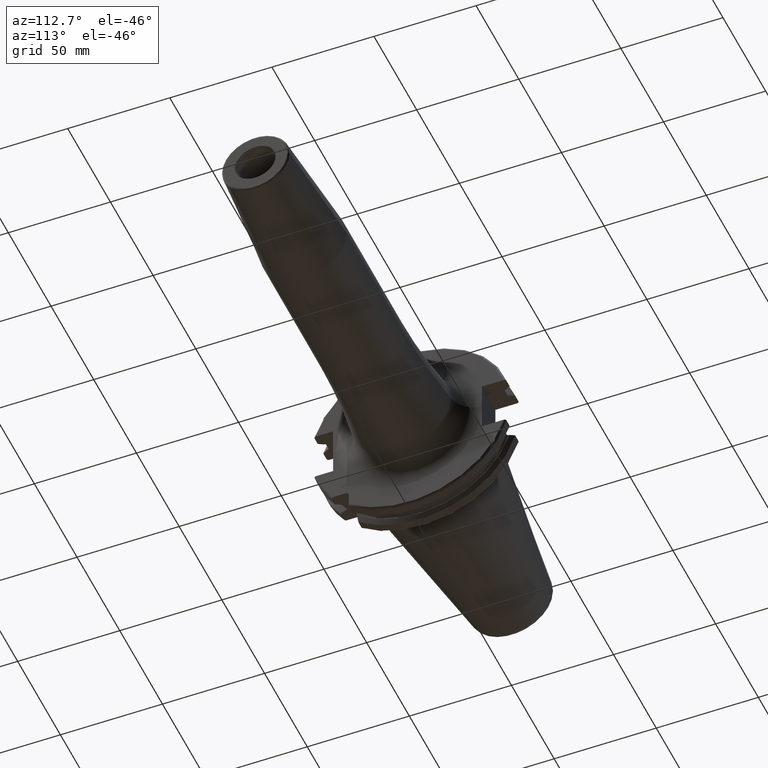
[diagram: clean part render]
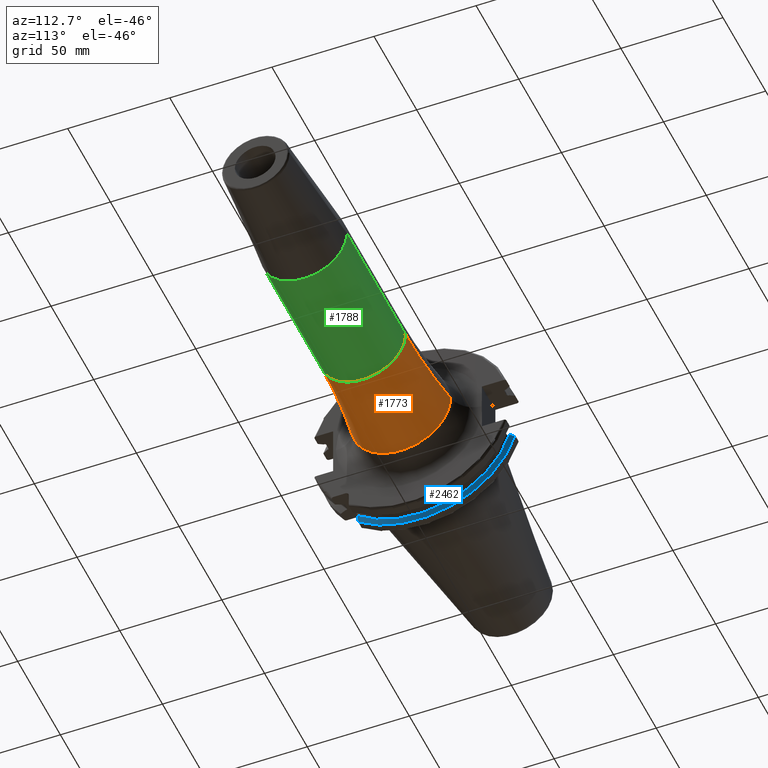
[diagram: same view with three faces highlighted in distinct colors, each labeled with its STEP entity id]
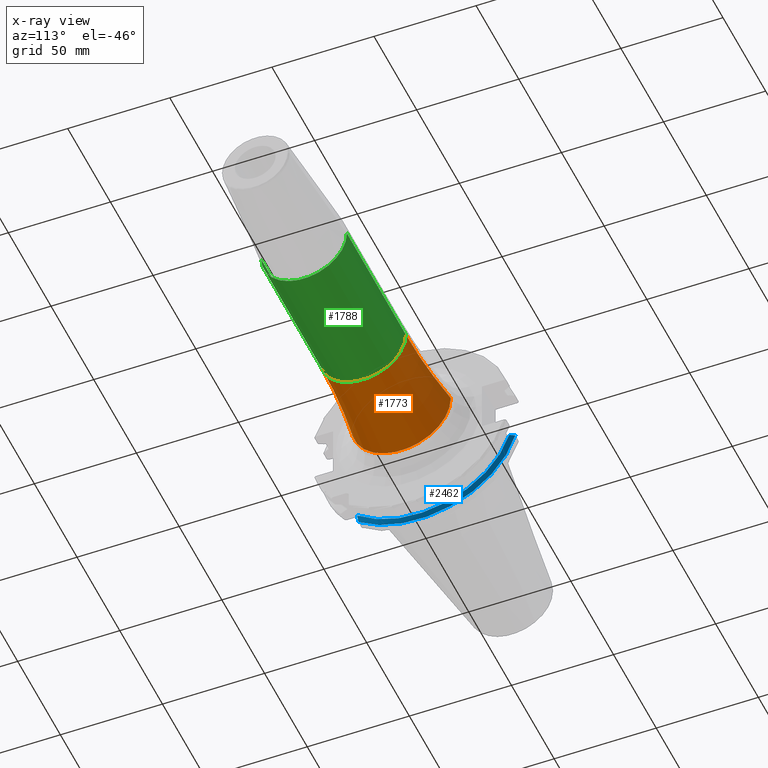
[diagram: x-ray of the same camera — body ghosted, the three highlighted faces saturated]
A machine part, auxiliary view with three faces highlighted in distinct colors.
The next image is the same camera in x-ray (body ghosted, the three faces saturated) — at least one of them is partly hidden behind the body in this view.
Their STEP definitions:

[orange] entity #1773 — the highlighted toroidal blend (fillet) surface has major radius 321 mm and minor (blend) radius 300 mm.
#201=CARTESIAN_POINT('',(2.925833333333E1,0.E0,0.E0));
#202=DIRECTION('',(1.E0,0.E0,0.E0));
#203=DIRECTION('',(0.E0,-1.E0,0.E0));
#204=AXIS2_PLACEMENT_3D('',#201,#202,#203);
#206=CARTESIAN_POINT('',(7.405E1,-3.21E2,-7.862232450526E-14));
#207=DIRECTION('',(0.E0,0.E0,1.E0));
#208=DIRECTION('',(0.E0,1.E0,0.E0));
#209=AXIS2_PLACEMENT_3D('',#206,#207,#208);
#211=CARTESIAN_POINT('',(7.405E1,3.21E2,3.931116225263E-14));
#212=DIRECTION('',(0.E0,0.E0,-1.E0));
#213=DIRECTION('',(0.E0,-1.E0,0.E0));
#214=AXIS2_PLACEMENT_3D('',#211,#212,#213);
#216=CARTESIAN_POINT('',(7.405E1,0.E0,0.E0));
#217=DIRECTION('',(1.E0,0.E0,0.E0));
#218=DIRECTION('',(0.E0,-1.E0,0.E0));
#219=AXIS2_PLACEMENT_3D('',#216,#217,#218);
#1490=CARTESIAN_POINT('',(7.405E1,2.1E1,0.E0));
#1491=CARTESIAN_POINT('',(7.405E1,-2.1E1,0.E0));
#1492=VERTEX_POINT('',#1490);
#1493=VERTEX_POINT('',#1491);
#1498=CARTESIAN_POINT('',(2.925833333333E1,-2.436266823405E1,0.E0));
#1499=CARTESIAN_POINT('',(2.925833333333E1,2.436266823405E1,0.E0));
#1500=VERTEX_POINT('',#1498);
#1501=VERTEX_POINT('',#1499);
#1761=CARTESIAN_POINT('',(7.405E1,0.E0,0.E0));
#1762=DIRECTION('',(1.E0,0.E0,0.E0));
#1763=DIRECTION('',(0.E0,-1.E0,0.E0));
#1764=AXIS2_PLACEMENT_3D('',#1761,#1762,#1763);
#1765=TOROIDAL_SURFACE('',#1764,3.21E2,3.E2);
#1766=ORIENTED_EDGE('',*,*,#1724,.F.);
#1767=ORIENTED_EDGE('',*,*,#1756,.F.);
#1769=ORIENTED_EDGE('',*,*,#1768,.T.);
#1770=ORIENTED_EDGE('',*,*,#1752,.T.);
#1771=EDGE_LOOP('',(#1766,#1767,#1769,#1770));
#1772=FACE_OUTER_BOUND('',#1771,.F.);
#1773=ADVANCED_FACE('',(#1772),#1765,.F.);
#205=CIRCLE('',#204,2.436266823405E1);
#210=CIRCLE('',#209,3.E2);
#215=CIRCLE('',#214,3.E2);
#220=CIRCLE('',#219,2.1E1);
#1724=EDGE_CURVE('',#1500,#1501,#205,.T.);
#1752=EDGE_CURVE('',#1492,#1501,#215,.T.);
#1756=EDGE_CURVE('',#1493,#1500,#210,.T.);
#1768=EDGE_CURVE('',#1493,#1492,#220,.T.);

[blue] entity #2462 — the highlighted conical surface has half-angle 60 deg.
#331=CARTESIAN_POINT('',(9.2625E0,0.E0,0.E0));
#332=DIRECTION('',(-1.E0,0.E0,0.E0));
#333=DIRECTION('',(0.E0,9.606411165078E-1,-2.777924499957E-1));
#334=AXIS2_PLACEMENT_3D('',#331,#332,#333);
#684=CARTESIAN_POINT('',(7.934621614173E0,0.E0,0.E0));
#685=DIRECTION('',(1.E0,0.E0,0.E0));
#686=DIRECTION('',(0.E0,-6.124647345473E-1,-7.904979120376E-1));
#687=AXIS2_PLACEMENT_3D('',#684,#685,#686);
#791=CARTESIAN_POINT('',(9.2625E0,4.460981716077E1,-1.29E1));
#792=CARTESIAN_POINT('',(9.118283773553E0,4.486984125009E1,-1.29E1));
#793=CARTESIAN_POINT('',(8.827633549554E0,4.539353719098E1,-1.29E1));
#794=CARTESIAN_POINT('',(8.385043355543E0,4.618996220278E1,-1.29E1));
#795=CARTESIAN_POINT('',(8.085504386120E0,4.672829507383E1,-1.29E1));
#796=CARTESIAN_POINT('',(7.934621614173E0,4.699929686974E1,-1.29E1));
#798=CARTESIAN_POINT('',(9.2625E0,-2.985E1,-3.557278857662E1));
#799=CARTESIAN_POINT('',(9.122796459387E0,-2.985E1,-3.588866659244E1));
#800=CARTESIAN_POINT('',(8.838204990616E0,-2.985E1,-3.652866450573E1));
#801=CARTESIAN_POINT('',(8.396067032347E0,-2.985E1,-3.751242476101E1));
#802=CARTESIAN_POINT('',(8.090246731407E0,-2.985E1,-3.818590359837E1));
#803=CARTESIAN_POINT('',(7.934621614173E0,-2.985E1,-3.852689198793E1));
#1320=CARTESIAN_POINT('',(9.2625E0,4.460981716077E1,-1.29E1));
#1322=VERTEX_POINT('',#1320);
#1364=VERTEX_POINT('',#796);
#1419=CARTESIAN_POINT('',(9.2625E0,-2.985E1,-3.557278857662E1));
#1420=VERTEX_POINT('',#1419);
#1463=VERTEX_POINT('',#803);
#2451=CARTESIAN_POINT('',(8.598560807087E0,0.E0,0.E0));
#2452=DIRECTION('',(-1.E0,0.E0,0.E0));
#2453=DIRECTION('',(0.E0,1.E0,0.E0));
#2454=AXIS2_PLACEMENT_3D('',#2451,#2452,#2453);
#2455=CONICAL_SURFACE('',#2454,4.758752358474E1,6.E1);
#2456=ORIENTED_EDGE('',*,*,#1941,.T.);
#2457=ORIENTED_EDGE('',*,*,#2351,.F.);
#2458=ORIENTED_EDGE('',*,*,#2305,.F.);
#2459=ORIENTED_EDGE('',*,*,#1968,.F.);
#2460=EDGE_LOOP('',(#2456,#2457,#2458,#2459));
#2461=FACE_OUTER_BOUND('',#2460,.F.);
#2462=ADVANCED_FACE('',(#2461),#2455,.T.);
#335=CIRCLE('',#334,4.643754716948E1);
#688=CIRCLE('',#687,4.87375E1);
#797=B_SPLINE_CURVE_WITH_KNOTS('',3,(#791,#792,#793,#794,#795,#796),
.UNSPECIFIED.,.F.,.F.,(4,1,1,4),(0.E0,3.333333333333E-1,6.666666666667E-1,1.E0),
.UNSPECIFIED.);
#804=B_SPLINE_CURVE_WITH_KNOTS('',3,(#798,#799,#800,#801,#802,#803),
.UNSPECIFIED.,.F.,.F.,(4,1,1,4),(0.E0,3.333333333333E-1,6.666666666667E-1,1.E0),
.UNSPECIFIED.);
#1941=EDGE_CURVE('',#1322,#1364,#797,.T.);
#1968=EDGE_CURVE('',#1322,#1420,#335,.T.);
#2305=EDGE_CURVE('',#1420,#1463,#804,.T.);
#2351=EDGE_CURVE('',#1463,#1364,#688,.T.);

[green] entity #1788 — the highlighted cylindrical surface (partial cylindrical patch) has radius 21 mm, axis along (1, 0, 0).
#216=CARTESIAN_POINT('',(7.405E1,0.E0,0.E0));
#217=DIRECTION('',(1.E0,0.E0,0.E0));
#218=DIRECTION('',(0.E0,-1.E0,0.E0));
#219=AXIS2_PLACEMENT_3D('',#216,#217,#218);
#221=DIRECTION('',(-1.E0,0.E0,0.E0));
#222=VECTOR('',#221,6.877207868721E1);
#223=CARTESIAN_POINT('',(1.428220786872E2,-2.1E1,0.E0));
#224=LINE('',#223,#222);
#225=CARTESIAN_POINT('',(1.428220786872E2,0.E0,0.E0));
#226=DIRECTION('',(-1.E0,0.E0,0.E0));
#227=DIRECTION('',(0.E0,1.E0,0.E0));
#228=AXIS2_PLACEMENT_3D('',#225,#226,#227);
#230=DIRECTION('',(-1.E0,0.E0,0.E0));
#231=VECTOR('',#230,6.877207868721E1);
#232=CARTESIAN_POINT('',(1.428220786872E2,2.1E1,0.E0));
#233=LINE('',#232,#231);
#1470=CARTESIAN_POINT('',(1.428220786872E2,2.1E1,0.E0));
#1471=CARTESIAN_POINT('',(1.428220786872E2,-2.1E1,0.E0));
#1472=VERTEX_POINT('',#1470);
#1473=VERTEX_POINT('',#1471);
#1490=CARTESIAN_POINT('',(7.405E1,2.1E1,0.E0));
#1491=CARTESIAN_POINT('',(7.405E1,-2.1E1,0.E0));
#1492=VERTEX_POINT('',#1490);
#1493=VERTEX_POINT('',#1491);
#1774=CARTESIAN_POINT('',(1.00025E1,0.E0,0.E0));
#1775=DIRECTION('',(1.E0,0.E0,0.E0));
#1776=DIRECTION('',(0.E0,-1.E0,0.E0));
#1777=AXIS2_PLACEMENT_3D('',#1774,#1775,#1776);
#1778=CYLINDRICAL_SURFACE('',#1777,2.1E1);
#1779=ORIENTED_EDGE('',*,*,#1768,.F.);
#1781=ORIENTED_EDGE('',*,*,#1780,.F.);
#1783=ORIENTED_EDGE('',*,*,#1782,.F.);
#1785=ORIENTED_EDGE('',*,*,#1784,.T.);
#1786=EDGE_LOOP('',(#1779,#1781,#1783,#1785));
#1787=FACE_OUTER_BOUND('',#1786,.F.);
#1788=ADVANCED_FACE('',(#1787),#1778,.T.);
#220=CIRCLE('',#219,2.1E1);
#229=CIRCLE('',#228,2.1E1);
#1768=EDGE_CURVE('',#1493,#1492,#220,.T.);
#1780=EDGE_CURVE('',#1473,#1493,#224,.T.);
#1782=EDGE_CURVE('',#1472,#1473,#229,.T.);
#1784=EDGE_CURVE('',#1472,#1492,#233,.T.);